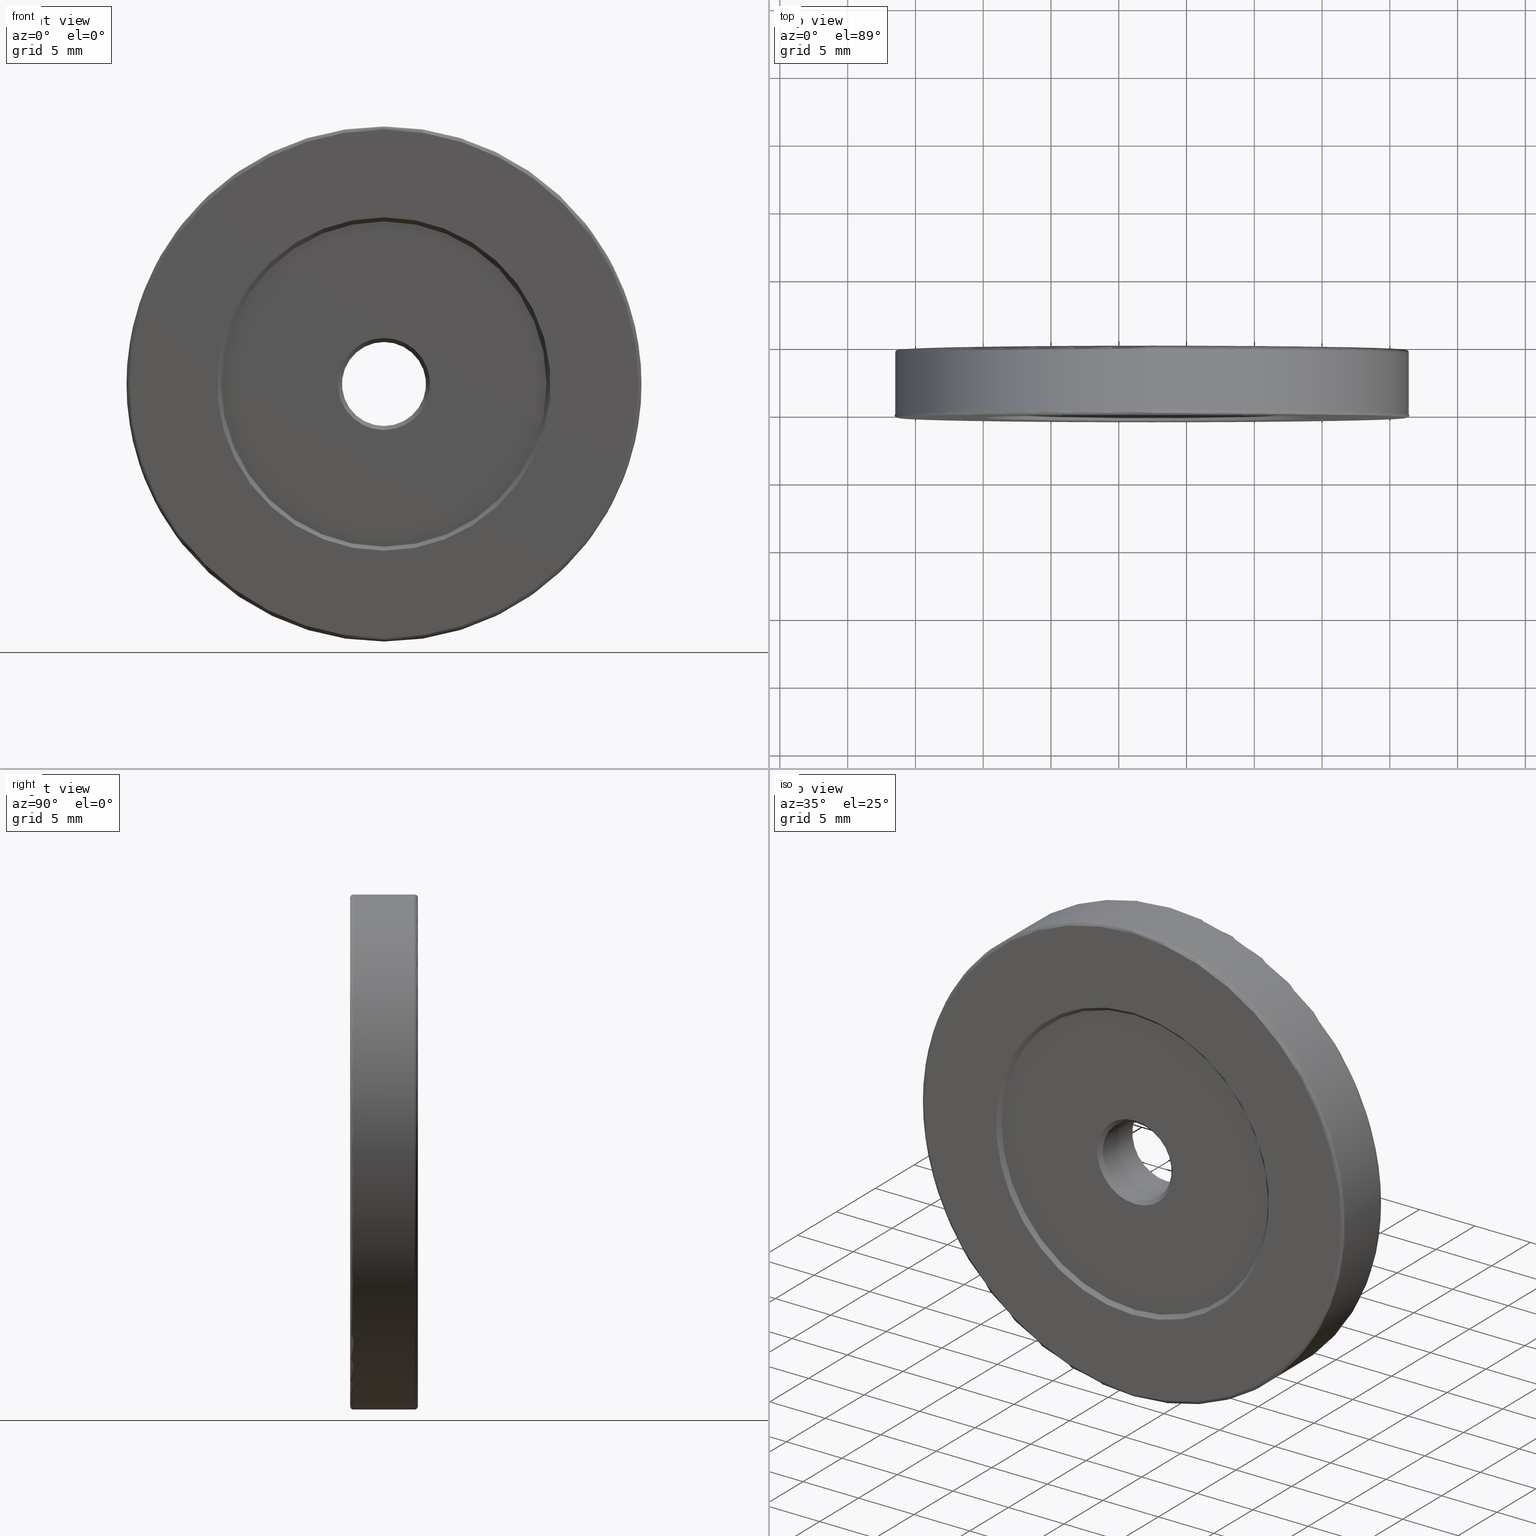
[diagram: canonical four-view strip — front | top / right | iso, engineering-drawing reading convention]
A machine part, canonical four-view strip (front | top / right | iso — engineering-drawing reading convention). The complete STEP part file that produces these views, byte-faithful:
ISO-10303-21;
HEADER;
FILE_DESCRIPTION (( 'STEP AP203' ),
    '1' );
FILE_NAME ('1.4.2.118_ZGH-38-DK5.STEP',
    '2024-04-06T05:19:51',
    ( '' ),
    ( '' ),
    'SwSTEP 2.0',
    'SolidWorks 2021',
    '' );
FILE_SCHEMA (( 'CONFIG_CONTROL_DESIGN' ));
ENDSEC;

DATA;
#1 = CARTESIAN_POINT ( 'NONE',  ( -7.546808913101048510, -0.6935951273027277653, 41.39999999999999147 ) ) ;
#2 = EDGE_CURVE ( 'NONE', #474, #240, #572, .T. ) ;
#3 = CARTESIAN_POINT ( 'NONE',  ( -7.546808913101048510, -0.9935951273027215924, 34.89999999999999858 ) ) ;
#4 = ORIENTED_EDGE ( 'NONE', *, *, #314, .T. ) ;
#5 = EDGE_CURVE ( 'NONE', #120, #249, #591, .T. ) ;
#6 = CONICAL_SURFACE ( 'NONE', #481, 3.099999999999998757, 0.7853981633974476129 ) ;
#7 = CONICAL_SURFACE ( 'NONE', #92, 12.00000000000000355, 0.7853981633974482790 ) ;
#8 = DIRECTION ( 'NONE',  ( 0.000000000000000000, 0.000000000000000000, -1.000000000000000000 ) ) ;
#9 = ORIENTED_EDGE ( 'NONE', *, *, #207, .T. ) ;
#10 = LOCAL_TIME ( 13, 19, 51.00000000000000000, #407 ) ;
#11 = DIRECTION ( 'NONE',  ( 0.000000000000000000, -0.000000000000000000, 1.000000000000000000 ) ) ;
#12 = CARTESIAN_POINT ( 'NONE',  ( -7.546808913101046734, -0.6935951273027277653, 25.99999999999999645 ) ) ;
#13 = APPROVAL ( #278, 'δָ��' ) ;
#14 = LINE ( 'NONE', #202, #593 ) ;
#15 = PLANE ( 'NONE',  #408 ) ;
#16 = FACE_OUTER_BOUND ( 'NONE', #370, .T. ) ;
#17 = PERSON_AND_ORGANIZATION ( #122, #308 ) ;
#18 = CARTESIAN_POINT ( 'NONE',  ( -7.546808913101048510, -5.143595127302727832, 38.00000000000000000 ) ) ;
#19 = AXIS2_PLACEMENT_3D ( 'NONE', #467, #365, #42 ) ;
#20 = DIRECTION ( 'NONE',  ( 0.000000000000000000, 0.000000000000000000, 1.000000000000000000 ) ) ;
#21 = LINE ( 'NONE', #268, #115 ) ;
#22 = PERSON_AND_ORGANIZATION_ROLE ( 'design_supplier' ) ;
#23 = DIRECTION ( 'NONE',  ( 8.659560562354939021E-17, -0.7071067811865470176, 0.7071067811865480168 ) ) ;
#24 = COORDINATED_UNIVERSAL_TIME_OFFSET ( 8, 0, .AHEAD. ) ;
#25 = EDGE_CURVE ( 'NONE', #32, #336, #594, .T. ) ;
#26 = ORIENTED_EDGE ( 'NONE', *, *, #161, .F. ) ;
#27 = VECTOR ( 'NONE', #610, 1000.000000000000000 ) ;
#28 = FACE_OUTER_BOUND ( 'NONE', #483, .T. ) ;
#29 = CONICAL_SURFACE ( 'NONE', #230, 12.00000000000000355, 0.7853981633974482790 ) ;
#30 = AXIS2_PLACEMENT_3D ( 'NONE', #431, #140, #337 ) ;
#31 =( LENGTH_UNIT ( ) NAMED_UNIT ( * ) SI_UNIT ( .MILLI., .METRE. ) );
#32 = VERTEX_POINT ( 'NONE', #58 ) ;
#33 = EDGE_CURVE ( 'NONE', #333, #82, #258, .T. ) ;
#34 = DIRECTION ( 'NONE',  ( 0.000000000000000000, 1.000000000000000000, 0.000000000000000000 ) ) ;
#35 = ORIENTED_EDGE ( 'NONE', *, *, #110, .T. ) ;
#36 = ORIENTED_EDGE ( 'NONE', *, *, #576, .T. ) ;
#37 = PRODUCT ( '1.4.2.118_ZGH-38-DK5', '1.4.2.118_ZGH-38-DK5', '', ( #216 ) ) ;
#38 = APPROVAL_PERSON_ORGANIZATION ( #17, #601, #72 ) ;
#39 = SECURITY_CLASSIFICATION ( '', '', #169 ) ;
#40 = AXIS2_PLACEMENT_3D ( 'NONE', #203, #206, #358 ) ;
#41 = EDGE_LOOP ( 'NONE', ( #193, #219, #428, #521 ) ) ;
#42 = DIRECTION ( 'NONE',  ( 0.000000000000000000, -0.000000000000000000, 1.000000000000000000 ) ) ;
#43 = ORIENTED_EDGE ( 'NONE', *, *, #580, .F. ) ;
#44 = EDGE_LOOP ( 'NONE', ( #325, #553, #508, #97 ) ) ;
#45 = CONICAL_SURFACE ( 'NONE', #264, 3.400000000000000355, 0.7853981633974490562 ) ;
#46 = DIRECTION ( 'NONE',  ( 0.000000000000000000, 0.000000000000000000, 1.000000000000000000 ) ) ;
#47 = EDGE_LOOP ( 'NONE', ( #175, #471 ) ) ;
#48 = DIRECTION ( 'NONE',  ( -0.000000000000000000, -1.000000000000000000, -0.000000000000000000 ) ) ;
#49 = ORIENTED_EDGE ( 'NONE', *, *, #552, .F. ) ;
#50 = EDGE_CURVE ( 'NONE', #240, #474, #102, .T. ) ;
#51 = DIRECTION ( 'NONE',  ( 0.000000000000000000, 1.000000000000000000, 0.000000000000000000 ) ) ;
#52 = ORIENTED_EDGE ( 'NONE', *, *, #518, .T. ) ;
#53 = AXIS2_PLACEMENT_3D ( 'NONE', #396, #583, #533 ) ;
#54 = AXIS2_PLACEMENT_3D ( 'NONE', #104, #301, #482 ) ;
#55 = CYLINDRICAL_SURFACE ( 'NONE', #165, 19.00000000000000000 ) ;
#56 = DIRECTION ( 'NONE',  ( -0.000000000000000000, -1.000000000000000000, -0.000000000000000000 ) ) ;
#57 = LINE ( 'NONE', #270, #503 ) ;
#58 = CARTESIAN_POINT ( 'NONE',  ( -7.546808913101048510, -5.393595127302728720, 25.69999999999998508 ) ) ;
#59 = DIRECTION ( 'NONE',  ( 8.659560562354926695E-17, 0.7071067811865480168, -0.7071067811865470176 ) ) ;
#60 = DIRECTION ( 'NONE',  ( 0.000000000000000000, 1.000000000000000000, 0.000000000000000000 ) ) ;
#61 = ORIENTED_EDGE ( 'NONE', *, *, #518, .F. ) ;
#62 = ADVANCED_FACE ( 'NONE', ( #112, #439 ), #15, .T. ) ;
#63 = CARTESIAN_POINT ( 'NONE',  ( -7.546808913101048510, -0.3935951273027278874, 56.74999999999999289 ) ) ;
#64 = AXIS2_PLACEMENT_3D ( 'NONE', #578, #294, #343 ) ;
#65 = APPROVAL_PERSON_ORGANIZATION ( #222, #342, #160 ) ;
#66 = ADVANCED_FACE ( 'NONE', ( #478 ), #392, .T. ) ;
#67 = PERSON_AND_ORGANIZATION_ROLE ( 'creator' ) ;
#68 = DIRECTION ( 'NONE',  ( 0.000000000000000000, -1.000000000000000000, 0.000000000000000000 ) ) ;
#69 = CC_DESIGN_PERSON_AND_ORGANIZATION_ASSIGNMENT ( #499, #75, ( #39 ) ) ;
#70 = DIRECTION ( 'NONE',  ( 0.000000000000000000, 1.000000000000000000, 0.000000000000000000 ) ) ;
#71 = EDGE_CURVE ( 'NONE', #184, #249, #155, .T. ) ;
#72 = APPROVAL_ROLE ( '' ) ;
#73 = LINE ( 'NONE', #269, #113 ) ;
#74 = ADVANCED_FACE ( 'NONE', ( #158 ), #250, .T. ) ;
#75 = PERSON_AND_ORGANIZATION_ROLE ( 'classification_officer' ) ;
#76 = ORIENTED_EDGE ( 'NONE', *, *, #299, .F. ) ;
#77 = AXIS2_PLACEMENT_3D ( 'NONE', #425, #174, #371 ) ;
#78 = CARTESIAN_POINT ( 'NONE',  ( -7.546808913101046734, -0.3935951273027278874, 25.70000000000001705 ) ) ;
#79 = AXIS2_PLACEMENT_3D ( 'NONE', #261, #60, #448 ) ;
#80 = ORIENTED_EDGE ( 'NONE', *, *, #232, .F. ) ;
#81 = CYLINDRICAL_SURFACE ( 'NONE', #251, 3.099999999999998757 ) ;
#82 = VERTEX_POINT ( 'NONE', #1 ) ;
#83 = ORIENTED_EDGE ( 'NONE', *, *, #117, .T. ) ;
#84 = CIRCLE ( 'NONE', #164, 3.399999999999993250 ) ;
#85 = AXIS2_PLACEMENT_3D ( 'NONE', #221, #168, #282 ) ;
#86 = AXIS2_PLACEMENT_3D ( 'NONE', #101, #402, #400 ) ;
#87 = ORIENTED_EDGE ( 'NONE', *, *, #50, .F. ) ;
#88 = CARTESIAN_POINT ( 'NONE',  ( -7.546808913101048510, -5.093595127302728898, 41.39999999999999858 ) ) ;
#89 = EDGE_LOOP ( 'NONE', ( #344, #557, #26, #283 ) ) ;
#90 = CARTESIAN_POINT ( 'NONE',  ( -7.546808913101048510, -0.6935951273027052277, 38.00000000000000000 ) ) ;
#91 = VERTEX_POINT ( 'NONE', #568 ) ;
#92 = AXIS2_PLACEMENT_3D ( 'NONE', #459, #34, #141 ) ;
#93 = CC_DESIGN_PERSON_AND_ORGANIZATION_ASSIGNMENT ( #366, #586, ( #37 ) ) ;
#94 = DIRECTION ( 'NONE',  ( 0.000000000000000000, 0.000000000000000000, 1.000000000000000000 ) ) ;
#95 = ORIENTED_EDGE ( 'NONE', *, *, #552, .T. ) ;
#96 = CARTESIAN_POINT ( 'NONE',  ( -7.546808913101048510, -5.143595127302727832, 38.00000000000000000 ) ) ;
#97 = ORIENTED_EDGE ( 'NONE', *, *, #364, .F. ) ;
#98 = APPLICATION_CONTEXT ( 'configuration controlled 3d designs of mechanical parts and assemblies' ) ;
#99 = CARTESIAN_POINT ( 'NONE',  ( -7.546808913101048510, -5.393595127302728720, 38.00000000000000000 ) ) ;
#100 = ORIENTED_EDGE ( 'NONE', *, *, #5, .T. ) ;
#101 = CARTESIAN_POINT ( 'NONE',  ( -7.546808913101048510, -0.6435951273027276098, 38.00000000000000000 ) ) ;
#102 = CIRCLE ( 'NONE', #186, 12.00000000000000355 ) ;
#103 = CONICAL_SURFACE ( 'NONE', #143, 3.400000000000000355, 0.7853981633974490562 ) ;
#104 = CARTESIAN_POINT ( 'NONE',  ( -7.546808913101048510, -0.9935951273027215924, 38.00000000000000000 ) ) ;
#105 = DIRECTION ( 'NONE',  ( 0.000000000000000000, 0.000000000000000000, 1.000000000000000000 ) ) ;
#106 = FACE_OUTER_BOUND ( 'NONE', #150, .T. ) ;
#107 = DIRECTION ( 'NONE',  ( 0.000000000000000000, 1.000000000000000000, 0.000000000000000000 ) ) ;
#108 = CARTESIAN_POINT ( 'NONE',  ( -7.546808913101045846, -5.393595127302728720, 19.25000000000000000 ) ) ;
#109 =( NAMED_UNIT ( * ) SI_UNIT ( $, .STERADIAN. ) SOLID_ANGLE_UNIT ( ) );
#110 = EDGE_CURVE ( 'NONE', #170, #195, #382, .T. ) ;
#111 = DIRECTION ( 'NONE',  ( 0.000000000000000000, 0.000000000000000000, 1.000000000000000000 ) ) ;
#112 = FACE_BOUND ( 'NONE', #234, .T. ) ;
#113 = VECTOR ( 'NONE', #239, 1000.000000000000114 ) ;
#114 = ADVANCED_FACE ( 'NONE', ( #391 ), #573, .F. ) ;
#115 = VECTOR ( 'NONE', #256, 1000.000000000000000 ) ;
#116 = CARTESIAN_POINT ( 'NONE',  ( -7.546808913101048510, -0.9935951273027215924, 38.00000000000000000 ) ) ;
#117 = EDGE_CURVE ( 'NONE', #500, #469, #453, .T. ) ;
#118 = APPLICATION_PROTOCOL_DEFINITION ( 'international standard', 'config_control_design', 1994, #130 ) ;
#119 = DIRECTION ( 'NONE',  ( 0.000000000000000000, 0.000000000000000000, 1.000000000000000000 ) ) ;
#120 = VERTEX_POINT ( 'NONE', #108 ) ;
#121 = FACE_OUTER_BOUND ( 'NONE', #44, .T. ) ;
#122 = PERSON ( 'δָ��', 'δָ��', 'δָ��', ('δָ��'), ('δָ��'), ('δָ��') ) ;
#123 = APPROVAL_DATE_TIME ( #327, #13 ) ;
#124 = EDGE_LOOP ( 'NONE', ( #238, #226, #287, #43 ) ) ;
#125 = AXIS2_PLACEMENT_3D ( 'NONE', #427, #523, #94 ) ;
#126 = DIRECTION ( 'NONE',  ( -0.000000000000000000, -1.000000000000000000, -0.000000000000000000 ) ) ;
#127 = VERTEX_POINT ( 'NONE', #585 ) ;
#128 = CALENDAR_DATE ( 2024, 6, 4 ) ;
#129 = EDGE_LOOP ( 'NONE', ( #419, #377 ) ) ;
#130 = APPLICATION_CONTEXT ( 'configuration controlled 3d designs of mechanical parts and assemblies' ) ;
#131 = ORIENTED_EDGE ( 'NONE', *, *, #345, .F. ) ;
#132 = ADVANCED_FACE ( 'NONE', ( #541 ), #417, .T. ) ;
#133 = VECTOR ( 'NONE', #545, 1000.000000000000000 ) ;
#134 = VECTOR ( 'NONE', #468, 1000.000000000000000 ) ;
#135 = PRODUCT_DEFINITION_FORMATION_WITH_SPECIFIED_SOURCE ( '�κ�', '', #37, .NOT_KNOWN. ) ;
#136 = CIRCLE ( 'NONE', #537, 12.00000000000000355 ) ;
#137 = DIRECTION ( 'NONE',  ( 1.000000000000000000, -0.000000000000000000, 1.224646799147353207E-16 ) ) ;
#138 = ORIENTED_EDGE ( 'NONE', *, *, #513, .T. ) ;
#139 = FACE_OUTER_BOUND ( 'NONE', #323, .T. ) ;
#140 = DIRECTION ( 'NONE',  ( -0.000000000000000000, -1.000000000000000000, -0.000000000000000000 ) ) ;
#141 = DIRECTION ( 'NONE',  ( 0.000000000000000000, 0.000000000000000000, 1.000000000000000000 ) ) ;
#142 = ORIENTED_EDGE ( 'NONE', *, *, #33, .F. ) ;
#143 = AXIS2_PLACEMENT_3D ( 'NONE', #291, #582, #526 ) ;
#144 = AXIS2_PLACEMENT_3D ( 'NONE', #581, #446, #437 ) ;
#145 = DIRECTION ( 'NONE',  ( -1.000000000000000000, 0.000000000000000000, 0.000000000000000000 ) ) ;
#146 = EDGE_LOOP ( 'NONE', ( #279, #87 ) ) ;
#147 = EDGE_CURVE ( 'NONE', #191, #333, #21, .T. ) ;
#148 = CARTESIAN_POINT ( 'NONE',  ( -7.546808913101048510, -5.393595127302728720, 38.00000000000000000 ) ) ;
#149 = DIRECTION ( 'NONE',  ( 0.000000000000000000, 1.000000000000000000, 0.000000000000000000 ) ) ;
#150 = EDGE_LOOP ( 'NONE', ( #444, #379, #292, #416 ) ) ;
#151 = FACE_OUTER_BOUND ( 'NONE', #124, .T. ) ;
#152 = DIRECTION ( 'NONE',  ( -0.000000000000000000, -1.000000000000000000, -0.000000000000000000 ) ) ;
#153 = DIRECTION ( 'NONE',  ( 0.000000000000000000, 0.000000000000000000, 1.000000000000000000 ) ) ;
#154 = DIRECTION ( 'NONE',  ( -0.000000000000000000, -1.000000000000000000, -0.000000000000000000 ) ) ;
#155 = CIRCLE ( 'NONE', #548, 18.99999999999999645 ) ;
#156 = CARTESIAN_POINT ( 'NONE',  ( -7.546808913101048510, -0.6935951273027277653, 38.00000000000000000 ) ) ;
#157 = APPROVAL_DATE_TIME ( #172, #601 ) ;
#158 = FACE_OUTER_BOUND ( 'NONE', #244, .T. ) ;
#159 = DIRECTION ( 'NONE',  ( 0.000000000000000000, 0.000000000000000000, -1.000000000000000000 ) ) ;
#160 = APPROVAL_ROLE ( '' ) ;
#161 = EDGE_CURVE ( 'NONE', #590, #340, #167, .T. ) ;
#162 = DIRECTION ( 'NONE',  ( -0.000000000000000000, 1.000000000000000000, -0.000000000000000000 ) ) ;
#163 = DIRECTION ( 'NONE',  ( 0.000000000000000000, 1.000000000000000000, 0.000000000000000000 ) ) ;
#164 = AXIS2_PLACEMENT_3D ( 'NONE', #560, #126, #592 ) ;
#165 = AXIS2_PLACEMENT_3D ( 'NONE', #245, #398, #8 ) ;
#166 = CC_DESIGN_APPROVAL ( #13, ( #39 ) ) ;
#167 = CIRCLE ( 'NONE', #144, 3.400000000000000355 ) ;
#168 = DIRECTION ( 'NONE',  ( 0.000000000000000000, 1.000000000000000000, 0.000000000000000000 ) ) ;
#169 = SECURITY_CLASSIFICATION_LEVEL ( 'unclassified' ) ;
#170 = VERTEX_POINT ( 'NONE', #12 ) ;
#171 = DIRECTION ( 'NONE',  ( -0.000000000000000000, -1.000000000000000000, -0.000000000000000000 ) ) ;
#172 = DATE_AND_TIME ( #369, #455 ) ;
#173 = ORIENTED_EDGE ( 'NONE', *, *, #345, .T. ) ;
#174 = DIRECTION ( 'NONE',  ( -0.000000000000000000, -1.000000000000000000, -0.000000000000000000 ) ) ;
#175 = ORIENTED_EDGE ( 'NONE', *, *, #484, .T. ) ;
#176 = AXIS2_PLACEMENT_3D ( 'NONE', #352, #149, #475 ) ;
#177 = PERSON_AND_ORGANIZATION ( #122, #308 ) ;
#178 = ADVANCED_FACE ( 'NONE', ( #16, #312 ), #587, .T. ) ;
#179 = VERTEX_POINT ( 'NONE', #63 ) ;
#180 = ADVANCED_FACE ( 'NONE', ( #151 ), #188, .F. ) ;
#181 = ORIENTED_EDGE ( 'NONE', *, *, #147, .F. ) ;
#182 = EDGE_CURVE ( 'NONE', #376, #423, #281, .T. ) ;
#183 = FACE_BOUND ( 'NONE', #394, .T. ) ;
#184 = VERTEX_POINT ( 'NONE', #347 ) ;
#185 = ADVANCED_FACE ( 'NONE', ( #201 ), #254, .T. ) ;
#186 = AXIS2_PLACEMENT_3D ( 'NONE', #295, #262, #153 ) ;
#187 = CIRCLE ( 'NONE', #380, 18.74999999999999645 ) ;
#188 = CONICAL_SURFACE ( 'NONE', #198, 12.30000000000001315, 0.7853981633974453924 ) ;
#189 = CARTESIAN_POINT ( 'NONE',  ( -7.546808913101048510, -0.6435951273027276098, 38.00000000000000000 ) ) ;
#190 = CC_DESIGN_PERSON_AND_ORGANIZATION_ASSIGNMENT ( #315, #490, ( #445 ) ) ;
#191 = VERTEX_POINT ( 'NONE', #307 ) ;
#192 = CARTESIAN_POINT ( 'NONE',  ( -7.546808913101044958, -0.6435951273027276098, 19.00000000000000000 ) ) ;
#193 = ORIENTED_EDGE ( 'NONE', *, *, #569, .F. ) ;
#194 = FACE_OUTER_BOUND ( 'NONE', #607, .T. ) ;
#195 = VERTEX_POINT ( 'NONE', #214 ) ;
#196 = DIRECTION ( 'NONE',  ( 0.000000000000000000, 0.000000000000000000, 1.000000000000000000 ) ) ;
#197 = VECTOR ( 'NONE', #152, 1000.000000000000000 ) ;
#198 = AXIS2_PLACEMENT_3D ( 'NONE', #546, #154, #159 ) ;
#199 = CARTESIAN_POINT ( 'NONE',  ( -7.546808913101048510, -0.3935951273027278874, 38.00000000000000000 ) ) ;
#200 = EDGE_LOOP ( 'NONE', ( #527, #598, #603, #426 ) ) ;
#201 = FACE_OUTER_BOUND ( 'NONE', #200, .T. ) ;
#202 = CARTESIAN_POINT ( 'NONE',  ( -7.546808913101046734, -5.393595127302728720, 50.30000000000001137 ) ) ;
#203 = CARTESIAN_POINT ( 'NONE',  ( -7.546808913101045846, -5.143595127302727832, 19.25000000000000000 ) ) ;
#204 = CARTESIAN_POINT ( 'NONE',  ( -7.546808913101048510, -0.3935951273027278874, 19.00000000000000000 ) ) ;
#205 = FACE_OUTER_BOUND ( 'NONE', #316, .T. ) ;
#206 = DIRECTION ( 'NONE',  ( 1.000000000000000000, -0.000000000000000000, 1.224646799147353207E-16 ) ) ;
#207 = EDGE_CURVE ( 'NONE', #469, #249, #480, .T. ) ;
#208 = CARTESIAN_POINT ( 'NONE',  ( -7.546808913101048510, -0.6935951273027277653, 38.00000000000000000 ) ) ;
#209 = CALENDAR_DATE ( 2024, 6, 4 ) ;
#210 = DIRECTION ( 'NONE',  ( 0.000000000000000000, 0.000000000000000000, 1.000000000000000000 ) ) ;
#211 = EDGE_CURVE ( 'NONE', #120, #349, #479, .T. ) ;
#212 = DIRECTION ( 'NONE',  ( 0.000000000000000000, 0.000000000000000000, 1.000000000000000000 ) ) ;
#213 = ORIENTED_EDGE ( 'NONE', *, *, #211, .F. ) ;
#214 = CARTESIAN_POINT ( 'NONE',  ( -7.546808913101048510, -0.6935951273027277653, 50.00000000000000000 ) ) ;
#215 = DIRECTION ( 'NONE',  ( -0.000000000000000000, 1.000000000000000000, -0.000000000000000000 ) ) ;
#216 = MECHANICAL_CONTEXT ( 'NONE', #98, 'mechanical' ) ;
#217 = VECTOR ( 'NONE', #23, 1000.000000000000000 ) ;
#218 = AXIS2_PLACEMENT_3D ( 'NONE', #393, #145, #574 ) ;
#219 = ORIENTED_EDGE ( 'NONE', *, *, #227, .F. ) ;
#220 = CIRCLE ( 'NONE', #562, 0.2500000000000002220 ) ;
#221 = CARTESIAN_POINT ( 'NONE',  ( -7.546808913101048510, -0.3935951273027278874, 38.00000000000000000 ) ) ;
#222 = PERSON_AND_ORGANIZATION ( #122, #308 ) ;
#223 = ORIENTED_EDGE ( 'NONE', *, *, #556, .F. ) ;
#224 = CARTESIAN_POINT ( 'NONE',  ( -7.546808913101046734, -5.093595127302728898, 50.00000000000000000 ) ) ;
#225 = ADVANCED_FACE ( 'NONE', ( #296 ), #6, .F. ) ;
#226 = ORIENTED_EDGE ( 'NONE', *, *, #50, .T. ) ;
#227 = EDGE_CURVE ( 'NONE', #195, #170, #136, .T. ) ;
#228 = SHAPE_DEFINITION_REPRESENTATION ( #324, #510 ) ;
#229 = ORIENTED_EDGE ( 'NONE', *, *, #288, .F. ) ;
#230 = AXIS2_PLACEMENT_3D ( 'NONE', #90, #452, #317 ) ;
#231 = AXIS2_PLACEMENT_3D ( 'NONE', #494, #162, #436 ) ;
#232 = EDGE_CURVE ( 'NONE', #500, #179, #220, .T. ) ;
#233 = COORDINATED_UNIVERSAL_TIME_OFFSET ( 8, 0, .AHEAD. ) ;
#234 = EDGE_LOOP ( 'NONE', ( #399, #600 ) ) ;
#235 = EDGE_CURVE ( 'NONE', #529, #127, #302, .T. ) ;
#236 = COORDINATED_UNIVERSAL_TIME_OFFSET ( 8, 0, .AHEAD. ) ;
#237 = LINE ( 'NONE', #563, #27 ) ;
#238 = ORIENTED_EDGE ( 'NONE', *, *, #513, .F. ) ;
#239 = DIRECTION ( 'NONE',  ( 0.000000000000000000, 0.7071067811865474617, 0.7071067811865474617 ) ) ;
#240 = VERTEX_POINT ( 'NONE', #224 ) ;
#241 = CIRCLE ( 'NONE', #54, 3.099999999999998757 ) ;
#242 = AXIS2_PLACEMENT_3D ( 'NONE', #355, #450, #549 ) ;
#243 = CARTESIAN_POINT ( 'NONE',  ( -7.546808913101048510, -5.093595127302728898, 25.99999999999999645 ) ) ;
#244 = EDGE_LOOP ( 'NONE', ( #36, #52, #389, #384 ) ) ;
#245 = CARTESIAN_POINT ( 'NONE',  ( -7.546808913101048510, -0.3935951273027278874, 38.00000000000000000 ) ) ;
#246 = ORIENTED_EDGE ( 'NONE', *, *, #288, .T. ) ;
#247 = DIRECTION ( 'NONE',  ( 0.000000000000000000, 1.000000000000000000, 0.000000000000000000 ) ) ;
#248 = DIRECTION ( 'NONE',  ( 0.000000000000000000, 1.000000000000000000, 0.000000000000000000 ) ) ;
#249 = VERTEX_POINT ( 'NONE', #554 ) ;
#250 = CYLINDRICAL_SURFACE ( 'NONE', #30, 19.00000000000000000 ) ;
#251 = AXIS2_PLACEMENT_3D ( 'NONE', #519, #215, #507 ) ;
#252 = AXIS2_PLACEMENT_3D ( 'NONE', #189, #422, #119 ) ;
#253 = EDGE_CURVE ( 'NONE', #82, #127, #84, .T. ) ;
#254 = TOROIDAL_SURFACE ( 'NONE', #300, 18.75000000000000000, 0.2500000000000000000 ) ;
#255 = DIRECTION ( 'NONE',  ( 0.000000000000000000, -0.7071067811865495711, -0.7071067811865454633 ) ) ;
#256 = DIRECTION ( 'NONE',  ( -0.000000000000000000, 1.000000000000000000, -0.000000000000000000 ) ) ;
#257 = DIRECTION ( 'NONE',  ( -0.000000000000000000, -1.000000000000000000, -0.000000000000000000 ) ) ;
#258 = LINE ( 'NONE', #579, #133 ) ;
#259 = ADVANCED_FACE ( 'NONE', ( #139 ), #81, .F. ) ;
#260 = CARTESIAN_POINT ( 'NONE',  ( -7.546808913101048510, -5.393595127302728720, 38.00000000000000000 ) ) ;
#261 = CARTESIAN_POINT ( 'NONE',  ( -7.546808913101048510, -5.393595127302728720, 38.00000000000000000 ) ) ;
#262 = DIRECTION ( 'NONE',  ( -0.000000000000000000, 1.000000000000000000, -0.000000000000000000 ) ) ;
#263 = CARTESIAN_POINT ( 'NONE',  ( -7.546808913101048510, -0.3935951273027278874, 38.00000000000000000 ) ) ;
#264 = AXIS2_PLACEMENT_3D ( 'NONE', #539, #257, #532 ) ;
#265 = DIRECTION ( 'NONE',  ( 8.659560562354932858E-17, 0.7071067811865474617, -0.7071067811865474617 ) ) ;
#266 = ORIENTED_EDGE ( 'NONE', *, *, #318, .T. ) ;
#267 = PERSON_AND_ORGANIZATION ( #122, #308 ) ;
#268 = CARTESIAN_POINT ( 'NONE',  ( -7.546808913101048510, -5.393595127302728720, 41.09999999999999432 ) ) ;
#269 = CARTESIAN_POINT ( 'NONE',  ( -7.546808913101048510, -0.6935951273027052277, 50.00000000000000000 ) ) ;
#270 = CARTESIAN_POINT ( 'NONE',  ( -7.546808913101046734, -0.6935951273027052277, 25.99999999999999645 ) ) ;
#271 = VECTOR ( 'NONE', #404, 1000.000000000000000 ) ;
#272 = UNCERTAINTY_MEASURE_WITH_UNIT (LENGTH_MEASURE( 1.000000000000000082E-05 ), #31, 'distance_accuracy_value', 'NONE');
#273 = FACE_OUTER_BOUND ( 'NONE', #41, .T. ) ;
#274 = EDGE_LOOP ( 'NONE', ( #605, #138, #575, #613 ) ) ;
#275 = CALENDAR_DATE ( 2024, 6, 4 ) ;
#276 = CC_DESIGN_DATE_AND_TIME_ASSIGNMENT ( #604, #420, ( #39 ) ) ;
#277 = ORIENTED_EDGE ( 'NONE', *, *, #462, .F. ) ;
#278 = APPROVAL_STATUS ( 'not_yet_approved' ) ;
#279 = ORIENTED_EDGE ( 'NONE', *, *, #2, .F. ) ;
#280 = CIRCLE ( 'NONE', #85, 18.74999999999999645 ) ;
#281 = CIRCLE ( 'NONE', #517, 12.29999999999997762 ) ;
#282 = DIRECTION ( 'NONE',  ( 0.000000000000000000, 0.000000000000000000, 1.000000000000000000 ) ) ;
#283 = ORIENTED_EDGE ( 'NONE', *, *, #303, .F. ) ;
#284 = LINE ( 'NONE', #368, #134 ) ;
#285 = ORIENTED_EDGE ( 'NONE', *, *, #5, .F. ) ;
#286 = PLANE ( 'NONE',  #19 ) ;
#287 = ORIENTED_EDGE ( 'NONE', *, *, #449, .T. ) ;
#288 = EDGE_CURVE ( 'NONE', #433, #191, #514, .T. ) ;
#289 = CARTESIAN_POINT ( 'NONE',  ( -7.546808913101045846, -0.3935951273027278874, 56.99999999999999289 ) ) ;
#290 = ORIENTED_EDGE ( 'NONE', *, *, #303, .T. ) ;
#291 = CARTESIAN_POINT ( 'NONE',  ( -7.546808913101048510, -5.093595127302728898, 38.00000000000000000 ) ) ;
#292 = ORIENTED_EDGE ( 'NONE', *, *, #33, .T. ) ;
#293 = EDGE_CURVE ( 'NONE', #191, #340, #321, .T. ) ;
#294 = DIRECTION ( 'NONE',  ( 0.000000000000000000, 1.000000000000000000, 0.000000000000000000 ) ) ;
#295 = CARTESIAN_POINT ( 'NONE',  ( -7.546808913101048510, -5.093595127302728898, 38.00000000000000000 ) ) ;
#296 = FACE_OUTER_BOUND ( 'NONE', #561, .T. ) ;
#297 = AXIS2_PLACEMENT_3D ( 'NONE', #412, #313, #406 ) ;
#298 = CIRCLE ( 'NONE', #79, 12.30000000000001315 ) ;
#299 = EDGE_CURVE ( 'NONE', #340, #590, #559, .T. ) ;
#300 = AXIS2_PLACEMENT_3D ( 'NONE', #543, #495, #111 ) ;
#301 = DIRECTION ( 'NONE',  ( 0.000000000000000000, 1.000000000000000000, 0.000000000000000000 ) ) ;
#302 = LINE ( 'NONE', #485, #360 ) ;
#303 = EDGE_CURVE ( 'NONE', #433, #590, #237, .T. ) ;
#304 = DATE_AND_TIME ( #209, #472 ) ;
#305 = CARTESIAN_POINT ( 'NONE',  ( -7.546808913101048510, -5.143595127302727832, 38.00000000000000000 ) ) ;
#306 = DIRECTION ( 'NONE',  ( 0.000000000000000000, 1.000000000000000000, 0.000000000000000000 ) ) ;
#307 = CARTESIAN_POINT ( 'NONE',  ( -7.546808913101048510, -4.793595127302728187, 41.09999999999999432 ) ) ;
#308 = ORGANIZATION ( 'δָ��', 'δָ��', '' ) ;
#309 = APPROVAL_STATUS ( 'not_yet_approved' ) ;
#310 = ORIENTED_EDGE ( 'NONE', *, *, #25, .T. ) ;
#311 = OPEN_SHELL ( 'NONE', ( #338, #132, #74, #326, #375, #225, #259, #538, #530, #114, #421, #509, #405, #178, #185, #447, #66, #322, #180, #62 ) ) ;
#312 = FACE_BOUND ( 'NONE', #47, .T. ) ;
#313 = DIRECTION ( 'NONE',  ( -0.000000000000000000, 1.000000000000000000, -0.000000000000000000 ) ) ;
#314 = EDGE_CURVE ( 'NONE', #191, #433, #424, .T. ) ;
#315 = PERSON_AND_ORGANIZATION ( #122, #308 ) ;
#316 = EDGE_LOOP ( 'NONE', ( #506, #229, #290, #76 ) ) ;
#317 = DIRECTION ( 'NONE',  ( 0.000000000000000000, 0.000000000000000000, 1.000000000000000000 ) ) ;
#318 = EDGE_CURVE ( 'NONE', #91, #179, #280, .T. ) ;
#319 = CIRCLE ( 'NONE', #64, 3.099999999999998757 ) ;
#320 = ORIENTED_EDGE ( 'NONE', *, *, #418, .T. ) ;
#321 = LINE ( 'NONE', #335, #217 ) ;
#322 = ADVANCED_FACE ( 'NONE', ( #606, #183 ), #286, .F. ) ;
#323 = EDGE_LOOP ( 'NONE', ( #4, #173, #516, #181 ) ) ;
#324 = PRODUCT_DEFINITION_SHAPE ( 'NONE', 'NONE',  #445 ) ;
#325 = ORIENTED_EDGE ( 'NONE', *, *, #110, .F. ) ;
#326 = ADVANCED_FACE ( 'NONE', ( #28 ), #454, .T. ) ;
#327 = DATE_AND_TIME ( #128, #505 ) ;
#328 = AXIS2_PLACEMENT_3D ( 'NONE', #502, #599, #550 ) ;
#329 = ORIENTED_EDGE ( 'NONE', *, *, #466, .T. ) ;
#330 = AXIS2_PLACEMENT_3D ( 'NONE', #96, #51, #470 ) ;
#331 = AXIS2_PLACEMENT_3D ( 'NONE', #260, #56, #589 ) ;
#332 = DIRECTION ( 'NONE',  ( 0.000000000000000000, 0.000000000000000000, -1.000000000000000000 ) ) ;
#333 = VERTEX_POINT ( 'NONE', #378 ) ;
#334 = EDGE_CURVE ( 'NONE', #469, #91, #609, .T. ) ;
#335 = CARTESIAN_POINT ( 'NONE',  ( -7.546808913101048510, -5.093595127302728898, 41.39999999999999858 ) ) ;
#336 = VERTEX_POINT ( 'NONE', #383 ) ;
#337 = DIRECTION ( 'NONE',  ( 0.000000000000000000, 0.000000000000000000, -1.000000000000000000 ) ) ;
#338 = ADVANCED_FACE ( 'NONE', ( #498 ), #372, .F. ) ;
#339 = DIRECTION ( 'NONE',  ( 0.000000000000000000, 0.000000000000000000, 1.000000000000000000 ) ) ;
#340 = VERTEX_POINT ( 'NONE', #88 ) ;
#341 = VECTOR ( 'NONE', #255, 1000.000000000000000 ) ;
#342 = APPROVAL ( #309, 'δָ��' ) ;
#343 = DIRECTION ( 'NONE',  ( 0.000000000000000000, 0.000000000000000000, 1.000000000000000000 ) ) ;
#344 = ORIENTED_EDGE ( 'NONE', *, *, #314, .F. ) ;
#345 = EDGE_CURVE ( 'NONE', #433, #529, #284, .T. ) ;
#346 = CARTESIAN_POINT ( 'NONE',  ( -7.546808913101048510, -0.3935951273027278874, 50.29999999999998295 ) ) ;
#347 = CARTESIAN_POINT ( 'NONE',  ( -7.546808913101045846, -5.143595127302727832, 56.99999999999999289 ) ) ;
#348 = DIRECTION ( 'NONE',  ( -0.000000000000000000, -1.000000000000000000, -0.000000000000000000 ) ) ;
#349 = VERTEX_POINT ( 'NONE', #551 ) ;
#350 = DIRECTION ( 'NONE',  ( 0.000000000000000000, 0.000000000000000000, 1.000000000000000000 ) ) ;
#351 = AXIS2_PLACEMENT_3D ( 'NONE', #305, #487, #441 ) ;
#352 = CARTESIAN_POINT ( 'NONE',  ( -7.546808913101048510, -0.9935951273027215924, 38.00000000000000000 ) ) ;
#353 = CARTESIAN_POINT ( 'NONE',  ( -7.546808913101048510, -5.093595127302728898, 38.00000000000000000 ) ) ;
#354 = DIRECTION ( 'NONE',  ( -0.000000000000000000, 1.000000000000000000, -0.000000000000000000 ) ) ;
#355 = CARTESIAN_POINT ( 'NONE',  ( 0.000000000000000000, 0.000000000000000000, 0.000000000000000000 ) ) ;
#356 = CARTESIAN_POINT ( 'NONE',  ( -7.546808913101048510, -0.3935951273027278874, 38.00000000000000000 ) ) ;
#357 = DATE_AND_TIME ( #595, #10 ) ;
#358 = DIRECTION ( 'NONE',  ( 0.000000000000000000, 0.000000000000000000, -1.000000000000000000 ) ) ;
#359 = DIRECTION ( 'NONE',  ( 0.000000000000000000, 0.000000000000000000, 1.000000000000000000 ) ) ;
#360 = VECTOR ( 'NONE', #59, 1000.000000000000000 ) ;
#361 = CIRCLE ( 'NONE', #434, 3.399999999999993250 ) ;
#362 = CC_DESIGN_APPROVAL ( #342, ( #135 ) ) ;
#363 = AXIS2_PLACEMENT_3D ( 'NONE', #525, #247, #196 ) ;
#364 = EDGE_CURVE ( 'NONE', #195, #423, #73, .T. ) ;
#365 = DIRECTION ( 'NONE',  ( 0.000000000000000000, 1.000000000000000000, 0.000000000000000000 ) ) ;
#366 = PERSON_AND_ORGANIZATION ( #122, #308 ) ;
#367 = EDGE_LOOP ( 'NONE', ( #213, #100, #458, #564 ) ) ;
#368 = CARTESIAN_POINT ( 'NONE',  ( -7.546808913101048510, -5.393595127302728720, 34.89999999999999858 ) ) ;
#369 = CALENDAR_DATE ( 2024, 6, 4 ) ;
#370 = EDGE_LOOP ( 'NONE', ( #524, #266 ) ) ;
#371 = DIRECTION ( 'NONE',  ( 0.000000000000000000, 0.000000000000000000, -1.000000000000000000 ) ) ;
#372 = CONICAL_SURFACE ( 'NONE', #522, 12.30000000000001315, 0.7853981633974453924 ) ;
#373 = CC_DESIGN_APPROVAL ( #601, ( #445 ) ) ;
#374 = ORIENTED_EDGE ( 'NONE', *, *, #253, .F. ) ;
#375 = ADVANCED_FACE ( 'NONE', ( #121 ), #29, .F. ) ;
#376 = VERTEX_POINT ( 'NONE', #78 ) ;
#377 = ORIENTED_EDGE ( 'NONE', *, *, #211, .T. ) ;
#378 = CARTESIAN_POINT ( 'NONE',  ( -7.546808913101048510, -0.9935951273027215924, 41.09999999999999432 ) ) ;
#379 = ORIENTED_EDGE ( 'NONE', *, *, #466, .F. ) ;
#380 = AXIS2_PLACEMENT_3D ( 'NONE', #199, #248, #339 ) ;
#381 = LOCAL_TIME ( 13, 19, 51.00000000000000000, #236 ) ;
#382 = CIRCLE ( 'NONE', #363, 12.00000000000000355 ) ;
#383 = CARTESIAN_POINT ( 'NONE',  ( -7.546808913101046734, -5.393595127302728720, 50.30000000000001137 ) ) ;
#384 = ORIENTED_EDGE ( 'NONE', *, *, #207, .F. ) ;
#385 = FACE_BOUND ( 'NONE', #413, .T. ) ;
#386 = ORIENTED_EDGE ( 'NONE', *, *, #147, .T. ) ;
#387 = CC_DESIGN_PERSON_AND_ORGANIZATION_ASSIGNMENT ( #267, #22, ( #135 ) ) ;
#388 = PLANE ( 'NONE',  #547 ) ;
#389 = ORIENTED_EDGE ( 'NONE', *, *, #71, .T. ) ;
#390 = CIRCLE ( 'NONE', #535, 18.99999999999999645 ) ;
#391 = FACE_OUTER_BOUND ( 'NONE', #555, .T. ) ;
#392 = TOROIDAL_SURFACE ( 'NONE', #351, 18.75000000000000000, 0.2500000000000000000 ) ;
#393 = CARTESIAN_POINT ( 'NONE',  ( -7.546808913101048510, -5.143595127302727832, 56.74999999999999289 ) ) ;
#394 = EDGE_LOOP ( 'NONE', ( #310, #558 ) ) ;
#395 = LINE ( 'NONE', #289, #197 ) ;
#396 = CARTESIAN_POINT ( 'NONE',  ( -7.546808913101048510, -5.393595127302728720, 38.00000000000000000 ) ) ;
#397 = CARTESIAN_POINT ( 'NONE',  ( -7.546808913101048510, -5.143595127302727832, 38.00000000000000000 ) ) ;
#398 = DIRECTION ( 'NONE',  ( -0.000000000000000000, -1.000000000000000000, -0.000000000000000000 ) ) ;
#399 = ORIENTED_EDGE ( 'NONE', *, *, #161, .T. ) ;
#400 = DIRECTION ( 'NONE',  ( 0.000000000000000000, 0.000000000000000000, 1.000000000000000000 ) ) ;
#401 = CIRCLE ( 'NONE', #515, 18.74999999999999645 ) ;
#402 = DIRECTION ( 'NONE',  ( -0.000000000000000000, -1.000000000000000000, -0.000000000000000000 ) ) ;
#403 = COORDINATED_UNIVERSAL_TIME_OFFSET ( 8, 0, .AHEAD. ) ;
#404 = DIRECTION ( 'NONE',  ( -0.000000000000000000, -1.000000000000000000, -0.000000000000000000 ) ) ;
#405 = ADVANCED_FACE ( 'NONE', ( #273 ), #7, .F. ) ;
#406 = DIRECTION ( 'NONE',  ( 0.000000000000000000, 0.000000000000000000, -1.000000000000000000 ) ) ;
#407 = COORDINATED_UNIVERSAL_TIME_OFFSET ( 8, 0, .AHEAD. ) ;
#408 = AXIS2_PLACEMENT_3D ( 'NONE', #353, #68, #540 ) ;
#409 = EDGE_CURVE ( 'NONE', #127, #82, #361, .T. ) ;
#410 = CARTESIAN_POINT ( 'NONE',  ( -7.546808913101045846, -0.6435951273027276098, 19.25000000000000000 ) ) ;
#411 = PERSON_AND_ORGANIZATION ( #122, #308 ) ;
#412 = CARTESIAN_POINT ( 'NONE',  ( -7.546808913101048510, -5.093595127302728898, 38.00000000000000000 ) ) ;
#413 = EDGE_LOOP ( 'NONE', ( #465, #611 ) ) ;
#414 = CIRCLE ( 'NONE', #125, 12.29999999999997762 ) ;
#415 = APPROVAL_PERSON_ORGANIZATION ( #177, #13, #608 ) ;
#416 = ORIENTED_EDGE ( 'NONE', *, *, #409, .F. ) ;
#417 = TOROIDAL_SURFACE ( 'NONE', #457, 18.75000000000000000, 0.2500000000000000000 ) ;
#418 = EDGE_CURVE ( 'NONE', #349, #184, #602, .T. ) ;
#419 = ORIENTED_EDGE ( 'NONE', *, *, #462, .T. ) ;
#420 = DATE_TIME_ROLE ( 'classification_date' ) ;
#421 = ADVANCED_FACE ( 'NONE', ( #106 ), #463, .F. ) ;
#422 = DIRECTION ( 'NONE',  ( 0.000000000000000000, 1.000000000000000000, 0.000000000000000000 ) ) ;
#423 = VERTEX_POINT ( 'NONE', #346 ) ;
#424 = CIRCLE ( 'NONE', #77, 3.099999999999998757 ) ;
#425 = CARTESIAN_POINT ( 'NONE',  ( -7.546808913101048510, -4.793595127302728187, 38.00000000000000000 ) ) ;
#426 = ORIENTED_EDGE ( 'NONE', *, *, #318, .F. ) ;
#427 = CARTESIAN_POINT ( 'NONE',  ( -7.546808913101048510, -0.3935951273027278874, 38.00000000000000000 ) ) ;
#428 = ORIENTED_EDGE ( 'NONE', *, *, #364, .T. ) ;
#429 = CARTESIAN_POINT ( 'NONE',  ( -7.546808913101048510, -0.6435951273027276098, 56.99999999999999289 ) ) ;
#430 = ORIENTED_EDGE ( 'NONE', *, *, #227, .T. ) ;
#431 = CARTESIAN_POINT ( 'NONE',  ( -7.546808913101048510, -0.3935951273027278874, 38.00000000000000000 ) ) ;
#432 = CARTESIAN_POINT ( 'NONE',  ( -7.546808913101048510, -4.793595127302728187, 34.89999999999999858 ) ) ;
#433 = VERTEX_POINT ( 'NONE', #432 ) ;
#434 = AXIS2_PLACEMENT_3D ( 'NONE', #528, #348, #46 ) ;
#435 = DIRECTION ( 'NONE',  ( 0.000000000000000000, 1.000000000000000000, 0.000000000000000000 ) ) ;
#436 = DIRECTION ( 'NONE',  ( 0.000000000000000000, 0.000000000000000000, 1.000000000000000000 ) ) ;
#437 = DIRECTION ( 'NONE',  ( 0.000000000000000000, 0.000000000000000000, -1.000000000000000000 ) ) ;
#438 = LINE ( 'NONE', #473, #341 ) ;
#439 = FACE_OUTER_BOUND ( 'NONE', #146, .T. ) ;
#440 = CARTESIAN_POINT ( 'NONE',  ( -7.546808913101048510, -0.6435951273027276098, 56.74999999999999289 ) ) ;
#441 = DIRECTION ( 'NONE',  ( 0.000000000000000000, 0.000000000000000000, 1.000000000000000000 ) ) ;
#442 = DIRECTION ( 'NONE',  ( -0.000000000000000000, -1.000000000000000000, -0.000000000000000000 ) ) ;
#443 = DIRECTION ( 'NONE',  ( -0.000000000000000000, -1.000000000000000000, -0.000000000000000000 ) ) ;
#444 = ORIENTED_EDGE ( 'NONE', *, *, #235, .F. ) ;
#445 = PRODUCT_DEFINITION ( 'δ֪', '', #135, #501 ) ;
#446 = DIRECTION ( 'NONE',  ( -0.000000000000000000, 1.000000000000000000, -0.000000000000000000 ) ) ;
#447 = ADVANCED_FACE ( 'NONE', ( #194 ), #55, .T. ) ;
#448 = DIRECTION ( 'NONE',  ( 0.000000000000000000, 0.000000000000000000, 1.000000000000000000 ) ) ;
#449 = EDGE_CURVE ( 'NONE', #474, #32, #438, .T. ) ;
#450 = DIRECTION ( 'NONE',  ( 0.000000000000000000, 0.000000000000000000, 1.000000000000000000 ) ) ;
#451 = ORIENTED_EDGE ( 'NONE', *, *, #460, .F. ) ;
#452 = DIRECTION ( 'NONE',  ( 0.000000000000000000, 1.000000000000000000, 0.000000000000000000 ) ) ;
#453 = CIRCLE ( 'NONE', #86, 18.99999999999999645 ) ;
#454 = TOROIDAL_SURFACE ( 'NONE', #252, 18.75000000000000000, 0.2500000000000000000 ) ;
#455 = LOCAL_TIME ( 13, 19, 51.00000000000000000, #24 ) ;
#456 = CARTESIAN_POINT ( 'NONE',  ( -7.546808913101048510, -0.6435951273027276098, 38.00000000000000000 ) ) ;
#457 = AXIS2_PLACEMENT_3D ( 'NONE', #397, #306, #531 ) ;
#458 = ORIENTED_EDGE ( 'NONE', *, *, #71, .F. ) ;
#459 = CARTESIAN_POINT ( 'NONE',  ( -7.546808913101048510, -0.6935951273027052277, 38.00000000000000000 ) ) ;
#460 = EDGE_CURVE ( 'NONE', #179, #91, #187, .T. ) ;
#461 = ORIENTED_EDGE ( 'NONE', *, *, #334, .T. ) ;
#462 = EDGE_CURVE ( 'NONE', #349, #120, #401, .T. ) ;
#463 = CONICAL_SURFACE ( 'NONE', #176, 3.099999999999998757, 0.7853981633974476129 ) ;
#464 = CC_DESIGN_SECURITY_CLASSIFICATION ( #39, ( #135 ) ) ;
#465 = ORIENTED_EDGE ( 'NONE', *, *, #253, .T. ) ;
#466 = EDGE_CURVE ( 'NONE', #333, #529, #319, .T. ) ;
#467 = CARTESIAN_POINT ( 'NONE',  ( -7.546808913101048510, -5.393595127302728720, 38.00000000000000000 ) ) ;
#468 = DIRECTION ( 'NONE',  ( -0.000000000000000000, 1.000000000000000000, -0.000000000000000000 ) ) ;
#469 = VERTEX_POINT ( 'NONE', #192 ) ;
#470 = DIRECTION ( 'NONE',  ( 0.000000000000000000, 0.000000000000000000, 1.000000000000000000 ) ) ;
#471 = ORIENTED_EDGE ( 'NONE', *, *, #182, .T. ) ;
#472 = LOCAL_TIME ( 13, 19, 51.00000000000000000, #403 ) ;
#473 = CARTESIAN_POINT ( 'NONE',  ( -7.546808913101048510, -5.393595127302728720, 25.69999999999998508 ) ) ;
#474 = VERTEX_POINT ( 'NONE', #243 ) ;
#475 = DIRECTION ( 'NONE',  ( 0.000000000000000000, 0.000000000000000000, 1.000000000000000000 ) ) ;
#476 = ORIENTED_EDGE ( 'NONE', *, *, #576, .F. ) ;
#477 = FACE_OUTER_BOUND ( 'NONE', #571, .T. ) ;
#478 = FACE_OUTER_BOUND ( 'NONE', #512, .T. ) ;
#479 = CIRCLE ( 'NONE', #331, 18.74999999999999645 ) ;
#480 = LINE ( 'NONE', #204, #271 ) ;
#481 = AXIS2_PLACEMENT_3D ( 'NONE', #116, #163, #359 ) ;
#482 = DIRECTION ( 'NONE',  ( 0.000000000000000000, 0.000000000000000000, 1.000000000000000000 ) ) ;
#483 = EDGE_LOOP ( 'NONE', ( #476, #461, #451, #80 ) ) ;
#484 = EDGE_CURVE ( 'NONE', #423, #376, #414, .T. ) ;
#485 = CARTESIAN_POINT ( 'NONE',  ( -7.546808913101048510, -0.9935951273027215924, 34.89999999999999858 ) ) ;
#486 = APPROVAL_STATUS ( 'not_yet_approved' ) ;
#487 = DIRECTION ( 'NONE',  ( 0.000000000000000000, 1.000000000000000000, 0.000000000000000000 ) ) ;
#488 = DIRECTION ( 'NONE',  ( 0.000000000000000000, -0.000000000000000000, 1.000000000000000000 ) ) ;
#489 = CC_DESIGN_DATE_AND_TIME_ASSIGNMENT ( #304, #588, ( #445 ) ) ;
#490 = PERSON_AND_ORGANIZATION_ROLE ( 'creator' ) ;
#491 = CIRCLE ( 'NONE', #330, 18.99999999999999645 ) ;
#492 = AXIS2_PLACEMENT_3D ( 'NONE', #263, #577, #488 ) ;
#493 = APPROVAL_DATE_TIME ( #357, #342 ) ;
#494 = CARTESIAN_POINT ( 'NONE',  ( -7.546808913101048510, -5.093595127302728898, 38.00000000000000000 ) ) ;
#495 = DIRECTION ( 'NONE',  ( 0.000000000000000000, 1.000000000000000000, 0.000000000000000000 ) ) ;
#496 = DIRECTION ( 'NONE',  ( 0.000000000000000000, 0.000000000000000000, 1.000000000000000000 ) ) ;
#497 = CC_DESIGN_PERSON_AND_ORGANIZATION_ASSIGNMENT ( #411, #67, ( #135 ) ) ;
#498 = FACE_OUTER_BOUND ( 'NONE', #274, .T. ) ;
#499 = PERSON_AND_ORGANIZATION ( #122, #308 ) ;
#500 = VERTEX_POINT ( 'NONE', #429 ) ;
#501 = DESIGN_CONTEXT ( 'detailed design', #130, 'design' ) ;
#502 = CARTESIAN_POINT ( 'NONE',  ( -7.546808913101048510, -4.793595127302728187, 38.00000000000000000 ) ) ;
#503 = VECTOR ( 'NONE', #265, 1000.000000000000114 ) ;
#504 =( GEOMETRIC_REPRESENTATION_CONTEXT ( 3 ) GLOBAL_UNCERTAINTY_ASSIGNED_CONTEXT ( ( #272 ) ) GLOBAL_UNIT_ASSIGNED_CONTEXT ( ( #31, #597, #109 ) ) REPRESENTATION_CONTEXT ( 'NONE', 'WORKASPACE' ) );
#505 = LOCAL_TIME ( 13, 19, 51.00000000000000000, #233 ) ;
#506 = ORIENTED_EDGE ( 'NONE', *, *, #293, .F. ) ;
#507 = DIRECTION ( 'NONE',  ( 0.000000000000000000, 0.000000000000000000, 1.000000000000000000 ) ) ;
#508 = ORIENTED_EDGE ( 'NONE', *, *, #484, .F. ) ;
#509 = ADVANCED_FACE ( 'NONE', ( #385, #477 ), #388, .T. ) ;
#510 = MANIFOLD_SURFACE_SHAPE_REPRESENTATION ( '1.4.2.118_ZGH-38-DK5', ( #565, #242 ), #504 ) ;
#511 = PRODUCT_RELATED_PRODUCT_CATEGORY ( 'detail', '', ( #37 ) ) ;
#512 = EDGE_LOOP ( 'NONE', ( #285, #277, #320, #49 ) ) ;
#513 = EDGE_CURVE ( 'NONE', #240, #336, #14, .T. ) ;
#514 = CIRCLE ( 'NONE', #328, 3.099999999999998757 ) ;
#515 = AXIS2_PLACEMENT_3D ( 'NONE', #99, #48, #612 ) ;
#516 = ORIENTED_EDGE ( 'NONE', *, *, #556, .T. ) ;
#517 = AXIS2_PLACEMENT_3D ( 'NONE', #356, #442, #212 ) ;
#518 = EDGE_CURVE ( 'NONE', #500, #184, #395, .T. ) ;
#519 = CARTESIAN_POINT ( 'NONE',  ( -7.546808913101048510, -5.393595127302728720, 38.00000000000000000 ) ) ;
#520 = CARTESIAN_POINT ( 'NONE',  ( -7.546808913101048510, -5.393595127302728720, 38.00000000000000000 ) ) ;
#521 = ORIENTED_EDGE ( 'NONE', *, *, #182, .F. ) ;
#522 = AXIS2_PLACEMENT_3D ( 'NONE', #520, #171, #332 ) ;
#523 = DIRECTION ( 'NONE',  ( -0.000000000000000000, -1.000000000000000000, -0.000000000000000000 ) ) ;
#524 = ORIENTED_EDGE ( 'NONE', *, *, #460, .T. ) ;
#525 = CARTESIAN_POINT ( 'NONE',  ( -7.546808913101048510, -0.6935951273027277653, 38.00000000000000000 ) ) ;
#526 = DIRECTION ( 'NONE',  ( 0.000000000000000000, 0.000000000000000000, -1.000000000000000000 ) ) ;
#527 = ORIENTED_EDGE ( 'NONE', *, *, #334, .F. ) ;
#528 = CARTESIAN_POINT ( 'NONE',  ( -7.546808913101048510, -0.6935951273027277653, 38.00000000000000000 ) ) ;
#529 = VERTEX_POINT ( 'NONE', #3 ) ;
#530 = ADVANCED_FACE ( 'NONE', ( #205 ), #45, .F. ) ;
#531 = DIRECTION ( 'NONE',  ( 0.000000000000000000, 0.000000000000000000, 1.000000000000000000 ) ) ;
#532 = DIRECTION ( 'NONE',  ( 0.000000000000000000, 0.000000000000000000, -1.000000000000000000 ) ) ;
#533 = DIRECTION ( 'NONE',  ( 0.000000000000000000, 0.000000000000000000, 1.000000000000000000 ) ) ;
#534 = AXIS2_PLACEMENT_3D ( 'NONE', #148, #354, #20 ) ;
#535 = AXIS2_PLACEMENT_3D ( 'NONE', #456, #443, #496 ) ;
#536 = DIRECTION ( 'NONE',  ( -1.000000000000000000, 0.000000000000000000, 0.000000000000000000 ) ) ;
#537 = AXIS2_PLACEMENT_3D ( 'NONE', #208, #70, #350 ) ;
#538 = ADVANCED_FACE ( 'NONE', ( #570 ), #103, .F. ) ;
#539 = CARTESIAN_POINT ( 'NONE',  ( -7.546808913101048510, -5.093595127302728898, 38.00000000000000000 ) ) ;
#540 = DIRECTION ( 'NONE',  ( 0.000000000000000000, 0.000000000000000000, 1.000000000000000000 ) ) ;
#541 = FACE_OUTER_BOUND ( 'NONE', #367, .T. ) ;
#542 = APPLICATION_PROTOCOL_DEFINITION ( 'international standard', 'config_control_design', 1994, #98 ) ;
#543 = CARTESIAN_POINT ( 'NONE',  ( -7.546808913101048510, -0.6435951273027276098, 38.00000000000000000 ) ) ;
#544 = CARTESIAN_POINT ( 'NONE',  ( -7.546808913101048510, -5.093595127302728898, 34.60000000000000142 ) ) ;
#545 = DIRECTION ( 'NONE',  ( 0.000000000000000000, 0.7071067811865480168, 0.7071067811865470176 ) ) ;
#546 = CARTESIAN_POINT ( 'NONE',  ( -7.546808913101048510, -5.393595127302728720, 38.00000000000000000 ) ) ;
#547 = AXIS2_PLACEMENT_3D ( 'NONE', #156, #435, #11 ) ;
#548 = AXIS2_PLACEMENT_3D ( 'NONE', #18, #107, #210 ) ;
#549 = DIRECTION ( 'NONE',  ( 1.000000000000000000, 0.000000000000000000, 0.000000000000000000 ) ) ;
#550 = DIRECTION ( 'NONE',  ( 0.000000000000000000, 0.000000000000000000, -1.000000000000000000 ) ) ;
#551 = CARTESIAN_POINT ( 'NONE',  ( -7.546808913101048510, -5.393595127302728720, 56.74999999999999289 ) ) ;
#552 = EDGE_CURVE ( 'NONE', #249, #184, #491, .T. ) ;
#553 = ORIENTED_EDGE ( 'NONE', *, *, #569, .T. ) ;
#554 = CARTESIAN_POINT ( 'NONE',  ( -7.546808913101048510, -5.143595127302727832, 19.00000000000000000 ) ) ;
#555 = EDGE_LOOP ( 'NONE', ( #131, #246, #386, #329 ) ) ;
#556 = EDGE_CURVE ( 'NONE', #529, #333, #241, .T. ) ;
#557 = ORIENTED_EDGE ( 'NONE', *, *, #293, .T. ) ;
#558 = ORIENTED_EDGE ( 'NONE', *, *, #580, .T. ) ;
#559 = CIRCLE ( 'NONE', #297, 3.400000000000000355 ) ;
#560 = CARTESIAN_POINT ( 'NONE',  ( -7.546808913101048510, -0.6935951273027277653, 38.00000000000000000 ) ) ;
#561 = EDGE_LOOP ( 'NONE', ( #223, #567, #374, #142 ) ) ;
#562 = AXIS2_PLACEMENT_3D ( 'NONE', #440, #536, #105 ) ;
#563 = CARTESIAN_POINT ( 'NONE',  ( -7.546808913101048510, -5.093595127302728898, 34.60000000000000142 ) ) ;
#564 = ORIENTED_EDGE ( 'NONE', *, *, #418, .F. ) ;
#565 = SHELL_BASED_SURFACE_MODEL ( 'NONE', ( #311 ) );
#566 = DIRECTION ( 'NONE',  ( 8.659560562354908206E-17, -0.7071067811865495711, 0.7071067811865454633 ) ) ;
#567 = ORIENTED_EDGE ( 'NONE', *, *, #235, .T. ) ;
#568 = CARTESIAN_POINT ( 'NONE',  ( -7.546808913101045846, -0.3935951273027278874, 19.25000000000000000 ) ) ;
#569 = EDGE_CURVE ( 'NONE', #170, #376, #57, .T. ) ;
#570 = FACE_OUTER_BOUND ( 'NONE', #89, .T. ) ;
#571 = EDGE_LOOP ( 'NONE', ( #430, #35 ) ) ;
#572 = CIRCLE ( 'NONE', #231, 12.00000000000000355 ) ;
#573 = CYLINDRICAL_SURFACE ( 'NONE', #534, 3.099999999999998757 ) ;
#574 = DIRECTION ( 'NONE',  ( 0.000000000000000000, 0.000000000000000000, 1.000000000000000000 ) ) ;
#575 = ORIENTED_EDGE ( 'NONE', *, *, #25, .F. ) ;
#576 = EDGE_CURVE ( 'NONE', #469, #500, #390, .T. ) ;
#577 = DIRECTION ( 'NONE',  ( 0.000000000000000000, 1.000000000000000000, 0.000000000000000000 ) ) ;
#578 = CARTESIAN_POINT ( 'NONE',  ( -7.546808913101048510, -0.9935951273027215924, 38.00000000000000000 ) ) ;
#579 = CARTESIAN_POINT ( 'NONE',  ( -7.546808913101048510, -0.9935951273027215924, 41.09999999999999432 ) ) ;
#580 = EDGE_CURVE ( 'NONE', #336, #32, #298, .T. ) ;
#581 = CARTESIAN_POINT ( 'NONE',  ( -7.546808913101048510, -5.093595127302728898, 38.00000000000000000 ) ) ;
#582 = DIRECTION ( 'NONE',  ( -0.000000000000000000, -1.000000000000000000, -0.000000000000000000 ) ) ;
#583 = DIRECTION ( 'NONE',  ( 0.000000000000000000, 1.000000000000000000, 0.000000000000000000 ) ) ;
#584 = AXIS2_PLACEMENT_3D ( 'NONE', #410, #137, #596 ) ;
#585 = CARTESIAN_POINT ( 'NONE',  ( -7.546808913101048510, -0.6935951273027277653, 34.60000000000000853 ) ) ;
#586 = PERSON_AND_ORGANIZATION_ROLE ( 'design_owner' ) ;
#587 = PLANE ( 'NONE',  #492 ) ;
#588 = DATE_TIME_ROLE ( 'creation_date' ) ;
#589 = DIRECTION ( 'NONE',  ( 0.000000000000000000, 0.000000000000000000, 1.000000000000000000 ) ) ;
#590 = VERTEX_POINT ( 'NONE', #544 ) ;
#591 = CIRCLE ( 'NONE', #40, 0.2500000000000002220 ) ;
#592 = DIRECTION ( 'NONE',  ( 0.000000000000000000, 0.000000000000000000, 1.000000000000000000 ) ) ;
#593 = VECTOR ( 'NONE', #566, 1000.000000000000000 ) ;
#594 = CIRCLE ( 'NONE', #53, 12.30000000000001315 ) ;
#595 = CALENDAR_DATE ( 2024, 6, 4 ) ;
#596 = DIRECTION ( 'NONE',  ( 0.000000000000000000, 0.000000000000000000, -1.000000000000000000 ) ) ;
#597 =( NAMED_UNIT ( * ) PLANE_ANGLE_UNIT ( ) SI_UNIT ( $, .RADIAN. ) );
#598 = ORIENTED_EDGE ( 'NONE', *, *, #117, .F. ) ;
#599 = DIRECTION ( 'NONE',  ( -0.000000000000000000, -1.000000000000000000, -0.000000000000000000 ) ) ;
#600 = ORIENTED_EDGE ( 'NONE', *, *, #299, .T. ) ;
#601 = APPROVAL ( #486, 'δָ��' ) ;
#602 = CIRCLE ( 'NONE', #218, 0.2500000000000002220 ) ;
#603 = ORIENTED_EDGE ( 'NONE', *, *, #232, .T. ) ;
#604 = DATE_AND_TIME ( #275, #381 ) ;
#605 = ORIENTED_EDGE ( 'NONE', *, *, #2, .T. ) ;
#606 = FACE_OUTER_BOUND ( 'NONE', #129, .T. ) ;
#607 = EDGE_LOOP ( 'NONE', ( #61, #83, #9, #95 ) ) ;
#608 = APPROVAL_ROLE ( '' ) ;
#609 = CIRCLE ( 'NONE', #584, 0.2500000000000002220 ) ;
#610 = DIRECTION ( 'NONE',  ( 0.000000000000000000, -0.7071067811865470176, -0.7071067811865480168 ) ) ;
#611 = ORIENTED_EDGE ( 'NONE', *, *, #409, .T. ) ;
#612 = DIRECTION ( 'NONE',  ( 0.000000000000000000, 0.000000000000000000, 1.000000000000000000 ) ) ;
#613 = ORIENTED_EDGE ( 'NONE', *, *, #449, .F. ) ;
ENDSEC;
END-ISO-10303-21;
